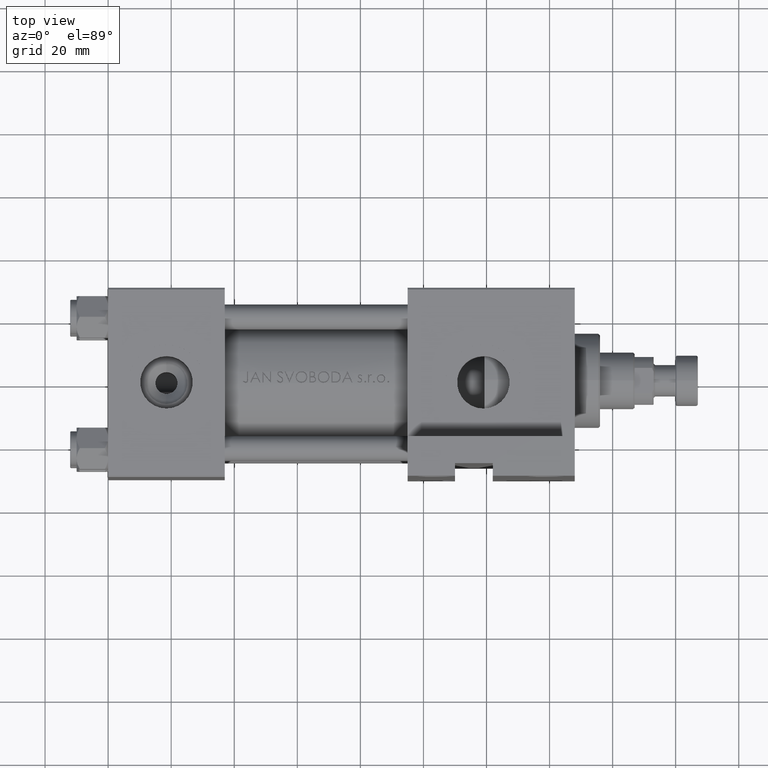
[diagram: clean part render]
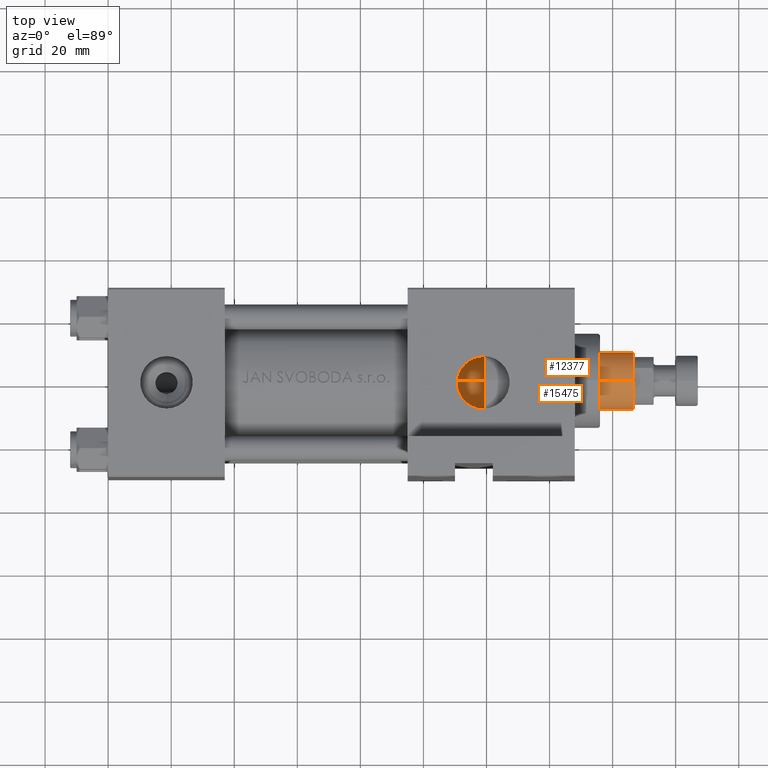
[diagram: same view with one multi-face feature highlighted, each face labeled with its STEP entity id]
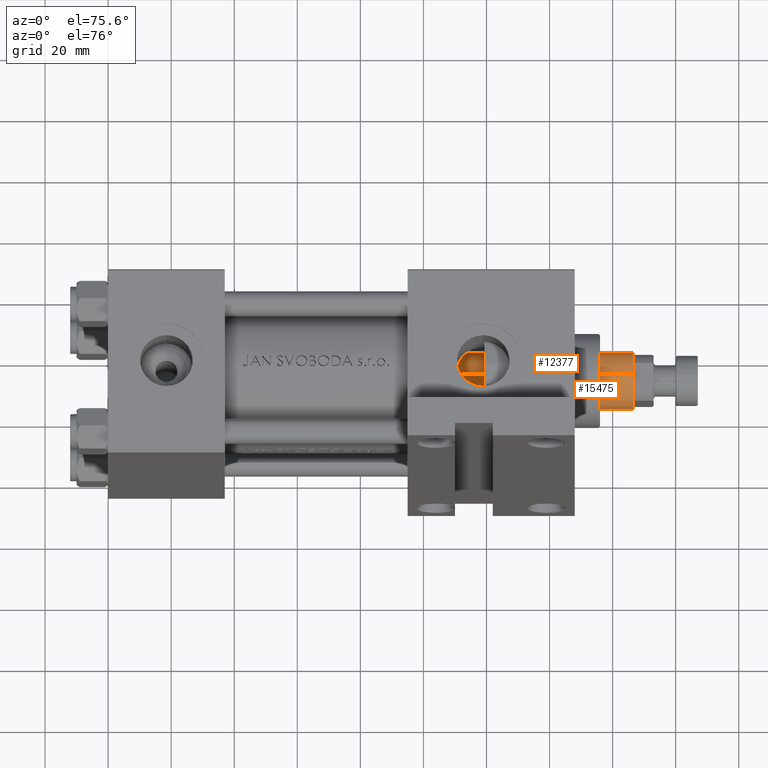
[diagram: same view with one multi-face feature highlighted, each face labeled with its STEP entity id]
A machine part, top view. The highlighted faces form ONE feature: a constant-radius fillet chain: 2 tangent blend faces with common blend radius 9 mm. The faces share edges in the B-rep.
A second angle (auxiliary view) of the same feature is appended — it is thin or edge-on in the first view.
Their STEP definitions:
[1] entity #12377 (Cylinder):
#75 = ORIENTED_EDGE ( 'NONE', *, *, #36914, .T. ) ;
#1122 = LINE ( 'NONE', #23520, #44366 ) ;
#2726 = DIRECTION ( 'NONE',  ( -1.000000000000000000, 0.000000000000000000, 0.000000000000000000 ) ) ;
#6503 = AXIS2_PLACEMENT_3D ( 'NONE', #15448, #27128, #7981 ) ;
#7671 = CARTESIAN_POINT ( 'NONE',  ( 0.000000000000000000, 0.000000000000000000, 130.0000000000000000 ) ) ;
#7910 = AXIS2_PLACEMENT_3D ( 'NONE', #42299, #15937, #35335 ) ;
#7981 = DIRECTION ( 'NONE',  ( 1.000000000000000000, 0.000000000000000000, 0.000000000000000000 ) ) ;
#9914 = CARTESIAN_POINT ( 'NONE',  ( 9.000000000000000000, 1.102182119232617714E-15, 129.5000000000000000 ) ) ;
#11882 = CIRCLE ( 'NONE', #7910, 9.000000000000000000 ) ;
#12377 = ADVANCED_FACE ( 'NONE', ( #41741 ), #44492, .T. ) ;
#12558 = DIRECTION ( 'NONE',  ( -0.000000000000000000, -0.000000000000000000, -1.000000000000000000 ) ) ;
#14416 = EDGE_CURVE ( 'NONE', #24487, #41901, #1122, .T. ) ;
#14888 = DIRECTION ( 'NONE',  ( -0.000000000000000000, -0.000000000000000000, -1.000000000000000000 ) ) ;
#15448 = CARTESIAN_POINT ( 'NONE',  ( 0.000000000000000000, 0.000000000000000000, 129.5000000000000000 ) ) ;
#15937 = DIRECTION ( 'NONE',  ( 0.000000000000000000, 0.000000000000000000, 1.000000000000000000 ) ) ;
#16749 = ORIENTED_EDGE ( 'NONE', *, *, #14416, .F. ) ;
#18873 = AXIS2_PLACEMENT_3D ( 'NONE', #7671, #14888, #2726 ) ;
#23256 = VERTEX_POINT ( 'NONE', #40669 ) ;
#23520 = CARTESIAN_POINT ( 'NONE',  ( 9.000000000000000000, 1.102182119232617714E-15, 130.0000000000000000 ) ) ;
#23864 = VERTEX_POINT ( 'NONE', #30287 ) ;
#24487 = VERTEX_POINT ( 'NONE', #9914 ) ;
#27128 = DIRECTION ( 'NONE',  ( 0.000000000000000000, 0.000000000000000000, -1.000000000000000000 ) ) ;
#29867 = ORIENTED_EDGE ( 'NONE', *, *, #33638, .T. ) ;
#30287 = CARTESIAN_POINT ( 'NONE',  ( -9.000000000000000000, 0.000000000000000000, 38.00000000000000000 ) ) ;
#30440 = LINE ( 'NONE', #42349, #43696 ) ;
#31145 = EDGE_LOOP ( 'NONE', ( #16749, #75, #29867, #32937 ) ) ;
#31176 = DIRECTION ( 'NONE',  ( -0.000000000000000000, -0.000000000000000000, -1.000000000000000000 ) ) ;
#31757 = EDGE_CURVE ( 'NONE', #23864, #41901, #11882, .T. ) ;
#32937 = ORIENTED_EDGE ( 'NONE', *, *, #31757, .T. ) ;
#33638 = EDGE_CURVE ( 'NONE', #23256, #23864, #30440, .T. ) ;
#35335 = DIRECTION ( 'NONE',  ( 1.000000000000000000, 0.000000000000000000, 0.000000000000000000 ) ) ;
#36914 = EDGE_CURVE ( 'NONE', #24487, #23256, #39823, .T. ) ;
#39823 = CIRCLE ( 'NONE', #6503, 9.000000000000000000 ) ;
#40669 = CARTESIAN_POINT ( 'NONE',  ( -9.000000000000000000, 0.000000000000000000, 129.5000000000000000 ) ) ;
#41741 = FACE_OUTER_BOUND ( 'NONE', #31145, .T. ) ;
#41901 = VERTEX_POINT ( 'NONE', #43934 ) ;
#42299 = CARTESIAN_POINT ( 'NONE',  ( 0.000000000000000000, 0.000000000000000000, 38.00000000000000000 ) ) ;
#42349 = CARTESIAN_POINT ( 'NONE',  ( -9.000000000000000000, 0.000000000000000000, 130.0000000000000000 ) ) ;
#43696 = VECTOR ( 'NONE', #31176, 1000.000000000000000 ) ;
#43934 = CARTESIAN_POINT ( 'NONE',  ( 9.000000000000000000, 1.102182119232617714E-15, 38.00000000000000000 ) ) ;
#44366 = VECTOR ( 'NONE', #12558, 1000.000000000000000 ) ;
#44492 = CYLINDRICAL_SURFACE ( 'NONE', #18873, 9.000000000000000000 ) ;
[2] entity #15475 (Cylinder):
#1122 = LINE ( 'NONE', #23520, #44366 ) ;
#1159 = EDGE_LOOP ( 'NONE', ( #23668, #27528, #46856, #31692 ) ) ;
#1597 = DIRECTION ( 'NONE',  ( 0.000000000000000000, 0.000000000000000000, 1.000000000000000000 ) ) ;
#2174 = EDGE_CURVE ( 'NONE', #41901, #23864, #8330, .T. ) ;
#4576 = CYLINDRICAL_SURFACE ( 'NONE', #38039, 9.000000000000000000 ) ;
#4748 = DIRECTION ( 'NONE',  ( 0.000000000000000000, 0.000000000000000000, -1.000000000000000000 ) ) ;
#8330 = CIRCLE ( 'NONE', #13927, 9.000000000000000000 ) ;
#9914 = CARTESIAN_POINT ( 'NONE',  ( 9.000000000000000000, 1.102182119232617714E-15, 129.5000000000000000 ) ) ;
#12022 = DIRECTION ( 'NONE',  ( -0.000000000000000000, -0.000000000000000000, -1.000000000000000000 ) ) ;
#12558 = DIRECTION ( 'NONE',  ( -0.000000000000000000, -0.000000000000000000, -1.000000000000000000 ) ) ;
#13737 = CIRCLE ( 'NONE', #20864, 9.000000000000000000 ) ;
#13927 = AXIS2_PLACEMENT_3D ( 'NONE', #46618, #1597, #36176 ) ;
#14416 = EDGE_CURVE ( 'NONE', #24487, #41901, #1122, .T. ) ;
#15475 = ADVANCED_FACE ( 'NONE', ( #31676 ), #4576, .T. ) ;
#20141 = CARTESIAN_POINT ( 'NONE',  ( 0.000000000000000000, 0.000000000000000000, 129.5000000000000000 ) ) ;
#20210 = CARTESIAN_POINT ( 'NONE',  ( 0.000000000000000000, 0.000000000000000000, 130.0000000000000000 ) ) ;
#20864 = AXIS2_PLACEMENT_3D ( 'NONE', #20141, #4748, #35330 ) ;
#23256 = VERTEX_POINT ( 'NONE', #40669 ) ;
#23520 = CARTESIAN_POINT ( 'NONE',  ( 9.000000000000000000, 1.102182119232617714E-15, 130.0000000000000000 ) ) ;
#23668 = ORIENTED_EDGE ( 'NONE', *, *, #39625, .T. ) ;
#23864 = VERTEX_POINT ( 'NONE', #30287 ) ;
#24487 = VERTEX_POINT ( 'NONE', #9914 ) ;
#27528 = ORIENTED_EDGE ( 'NONE', *, *, #14416, .T. ) ;
#30287 = CARTESIAN_POINT ( 'NONE',  ( -9.000000000000000000, 0.000000000000000000, 38.00000000000000000 ) ) ;
#30440 = LINE ( 'NONE', #42349, #43696 ) ;
#31176 = DIRECTION ( 'NONE',  ( -0.000000000000000000, -0.000000000000000000, -1.000000000000000000 ) ) ;
#31676 = FACE_OUTER_BOUND ( 'NONE', #1159, .T. ) ;
#31692 = ORIENTED_EDGE ( 'NONE', *, *, #33638, .F. ) ;
#33638 = EDGE_CURVE ( 'NONE', #23256, #23864, #30440, .T. ) ;
#35162 = DIRECTION ( 'NONE',  ( -1.000000000000000000, 0.000000000000000000, 0.000000000000000000 ) ) ;
#35330 = DIRECTION ( 'NONE',  ( 1.000000000000000000, 0.000000000000000000, 0.000000000000000000 ) ) ;
#36176 = DIRECTION ( 'NONE',  ( 1.000000000000000000, 0.000000000000000000, 0.000000000000000000 ) ) ;
#38039 = AXIS2_PLACEMENT_3D ( 'NONE', #20210, #12022, #35162 ) ;
#39625 = EDGE_CURVE ( 'NONE', #23256, #24487, #13737, .T. ) ;
#40669 = CARTESIAN_POINT ( 'NONE',  ( -9.000000000000000000, 0.000000000000000000, 129.5000000000000000 ) ) ;
#41901 = VERTEX_POINT ( 'NONE', #43934 ) ;
#42349 = CARTESIAN_POINT ( 'NONE',  ( -9.000000000000000000, 0.000000000000000000, 130.0000000000000000 ) ) ;
#43696 = VECTOR ( 'NONE', #31176, 1000.000000000000000 ) ;
#43934 = CARTESIAN_POINT ( 'NONE',  ( 9.000000000000000000, 1.102182119232617714E-15, 38.00000000000000000 ) ) ;
#44366 = VECTOR ( 'NONE', #12558, 1000.000000000000000 ) ;
#46618 = CARTESIAN_POINT ( 'NONE',  ( 0.000000000000000000, 0.000000000000000000, 38.00000000000000000 ) ) ;
#46856 = ORIENTED_EDGE ( 'NONE', *, *, #2174, .T. ) ;